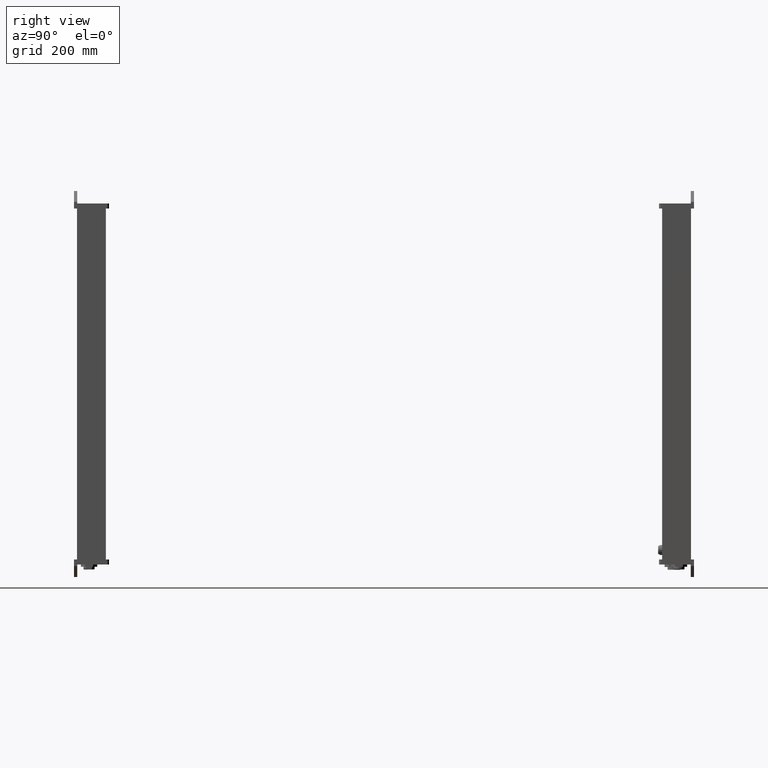
[diagram: clean part render]
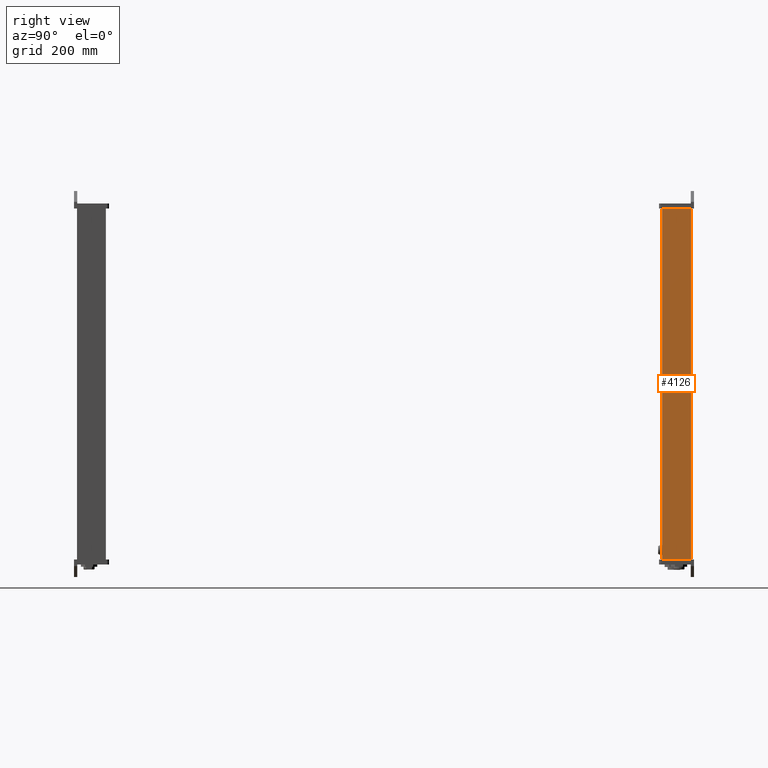
[diagram: same view with one face highlighted and labeled with its STEP entity id]
A machine part, right view. The second image highlights one B-rep face of the part: STEP entity #4126.
In plain terms, the highlighted planar face has unit normal (1, 0, 0).
Its self-contained STEP definition (entity closure, byte-faithful):
#3889=CARTESIAN_POINT('Line Origine',(0.,0.,315.5)) ;
#3893=CARTESIAN_POINT('Vertex',(0.,0.,0.)) ;
#3895=CARTESIAN_POINT('Vertex',(0.,0.,631.)) ;
#4083=CARTESIAN_POINT('Vertex',(3.5527136788E-015,52.,0.)) ;
#4086=CARTESIAN_POINT('Line Origine',(7.1054273576E-015,52.,315.5)) ;
#4090=CARTESIAN_POINT('Vertex',(3.5527136788E-015,52.,631.)) ;
#4105=CARTESIAN_POINT('Axis2P3D Location',(0.,52.,0.)) ;
#4110=CARTESIAN_POINT('Line Origine',(0.,26.,0.)) ;
#4115=CARTESIAN_POINT('Line Origine',(0.,26.,631.)) ;
#3890=DIRECTION('Vector Direction',(0.,0.,1.)) ;
#4087=DIRECTION('Vector Direction',(0.,0.,1.)) ;
#4106=DIRECTION('Axis2P3D Direction',(-1.,0.,0.)) ;
#4107=DIRECTION('Axis2P3D XDirection',(0.,-1.,0.)) ;
#4111=DIRECTION('Vector Direction',(0.,-1.,0.)) ;
#4116=DIRECTION('Vector Direction',(0.,-1.,0.)) ;
#4108=AXIS2_PLACEMENT_3D('Plane Axis2P3D',#4105,#4106,#4107) ;
#4121=ORIENTED_EDGE('',*,*,#4092,.F.) ;
#4122=ORIENTED_EDGE('',*,*,#4114,.T.) ;
#4123=ORIENTED_EDGE('',*,*,#3897,.T.) ;
#4124=ORIENTED_EDGE('',*,*,#4119,.F.) ;
#3891=VECTOR('Line Direction',#3890,1.) ;
#4088=VECTOR('Line Direction',#4087,1.) ;
#4112=VECTOR('Line Direction',#4111,1.) ;
#4117=VECTOR('Line Direction',#4116,1.) ;
#4126=ADVANCED_FACE('PartBody',(#4125),#4109,.T.) ;
#3897=EDGE_CURVE('',#3894,#3896,#3892,.T.) ;
#4092=EDGE_CURVE('',#4084,#4091,#4089,.T.) ;
#4114=EDGE_CURVE('',#4084,#3894,#4113,.T.) ;
#4119=EDGE_CURVE('',#4091,#3896,#4118,.T.) ;
#4120=EDGE_LOOP('',(#4121,#4122,#4123,#4124)) ;
#4125=FACE_OUTER_BOUND('',#4120,.T.) ;
#3892=LINE('Line',#3889,#3891) ;
#4089=LINE('Line',#4086,#4088) ;
#4113=LINE('Line',#4110,#4112) ;
#4118=LINE('Line',#4115,#4117) ;
#4109=PLANE('Plane',#4108) ;
#3894=VERTEX_POINT('',#3893) ;
#3896=VERTEX_POINT('',#3895) ;
#4084=VERTEX_POINT('',#4083) ;
#4091=VERTEX_POINT('',#4090) ;